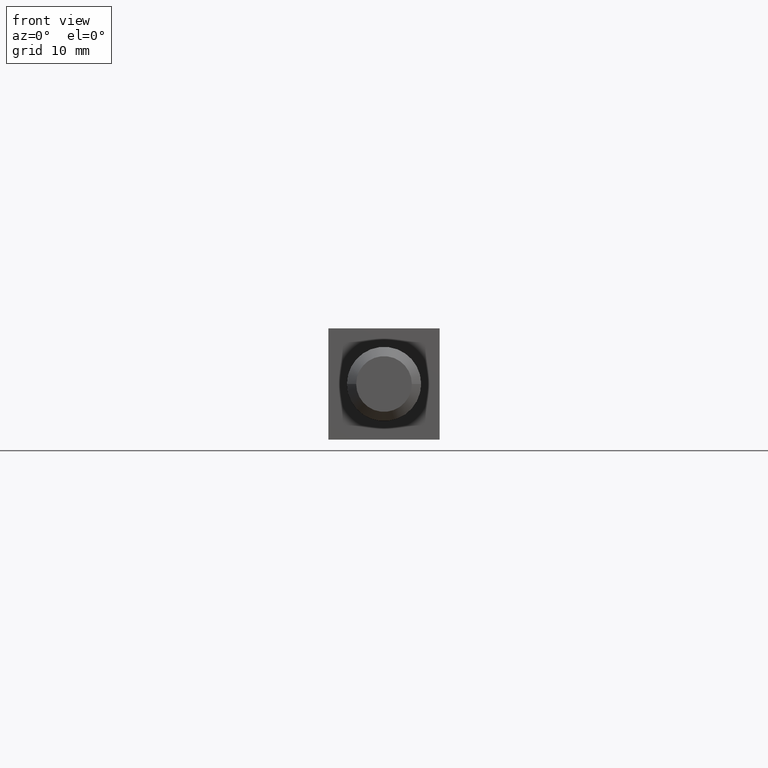
[diagram: clean part render]
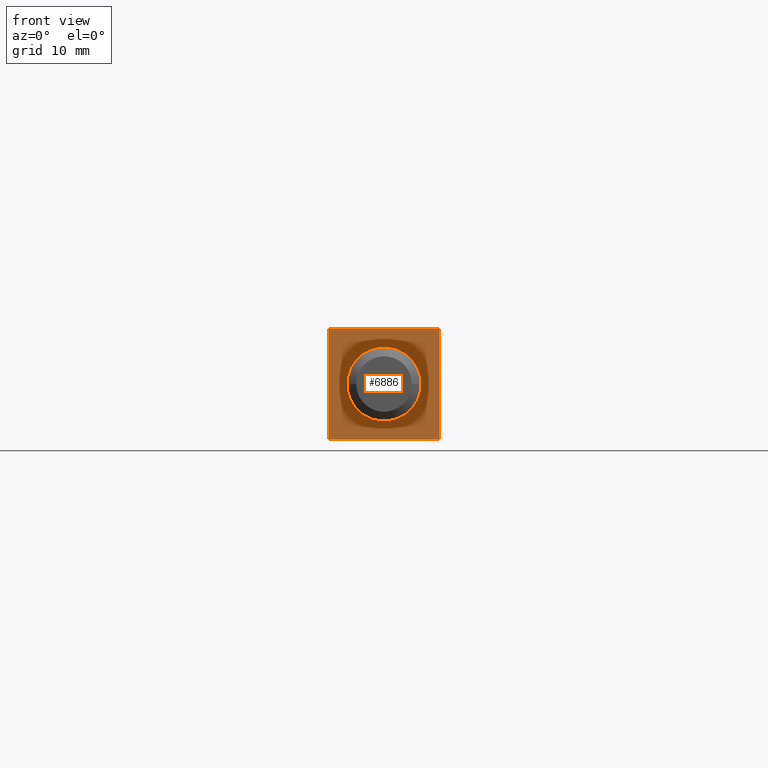
[diagram: same view with one face highlighted and labeled with its STEP entity id]
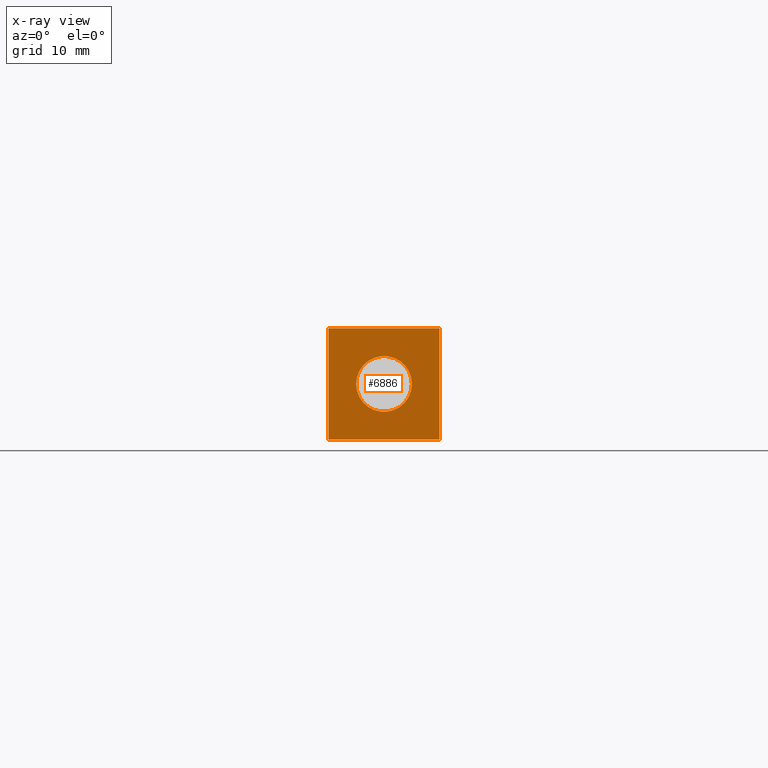
[diagram: x-ray of the same camera — body ghosted, the highlighted face saturated]
A machine part, front view. The second image highlights one B-rep face of the part: STEP entity #6886.
The next image is the same camera in x-ray: the body ghosted, the highlighted face saturated — about 0% of this face is hidden behind the body in this view.
In plain terms, the highlighted planar face has unit normal (-0, 1, 0).
Its self-contained STEP definition (entity closure, byte-faithful):
#18 = VERTEX_POINT ( 'NONE', #2774 ) ;
#280 = VERTEX_POINT ( 'NONE', #10686 ) ;
#384 = EDGE_CURVE ( 'NONE', #5508, #280, #404, .T. ) ;
#404 = LINE ( 'NONE', #7234, #4195 ) ;
#784 = VECTOR ( 'NONE', #7340, 1000.000000000000000 ) ;
#1205 = DIRECTION ( 'NONE',  ( -1.000000000000000000, -1.224646799147353200E-016, -0.0000000000000000000 ) ) ;
#1440 = CARTESIAN_POINT ( 'NONE',  ( -6.000000000000000900, -7.347880794884120700E-016, 5.999999999999999100 ) ) ;
#1458 = ORIENTED_EDGE ( 'NONE', *, *, #9680, .T. ) ;
#1584 = LINE ( 'NONE', #3324, #784 ) ;
#1621 = DIRECTION ( 'NONE',  ( -1.224646799147353000E-016, 1.000000000000000000, -0.0000000000000000000 ) ) ;
#1677 = CARTESIAN_POINT ( 'NONE',  ( 5.999999999999999100, 7.347880794884118800E-016, 5.999999999999999100 ) ) ;
#1823 = CARTESIAN_POINT ( 'NONE',  ( -6.000000000000000900, -7.347880794884120700E-016, 5.999999999999999100 ) ) ;
#2131 = AXIS2_PLACEMENT_3D ( 'NONE', #12581, #2453, #4638 ) ;
#2174 = EDGE_CURVE ( 'NONE', #6255, #12852, #3008, .T. ) ;
#2205 = VERTEX_POINT ( 'NONE', #7852 ) ;
#2453 = DIRECTION ( 'NONE',  ( -1.224646799147353000E-016, 1.000000000000000000, -0.0000000000000000000 ) ) ;
#2482 = EDGE_CURVE ( 'NONE', #12852, #5508, #1584, .T. ) ;
#2774 = CARTESIAN_POINT ( 'NONE',  ( -3.000214798500902900, -7.350326440822314800E-016, 0.0000000000000000000 ) ) ;
#3008 = LINE ( 'NONE', #1823, #3793 ) ;
#3324 = CARTESIAN_POINT ( 'NONE',  ( 5.999999999999997300, 7.347880794884116800E-016, -6.000000000000000900 ) ) ;
#3379 = DIRECTION ( 'NONE',  ( 1.445602896647339200E-016, 1.604941620322696500E-032, 1.000000000000000000 ) ) ;
#3638 = CIRCLE ( 'NONE', #2131, 3.000214798500902900 ) ;
#3793 = VECTOR ( 'NONE', #8880, 1000.000000000000000 ) ;
#4076 = CARTESIAN_POINT ( 'NONE',  ( 5.999999999999997300, 7.347880794884116800E-016, -6.000000000000000900 ) ) ;
#4195 = VECTOR ( 'NONE', #1205, 1000.000000000000000 ) ;
#4304 = VECTOR ( 'NONE', #3379, 1000.000000000000000 ) ;
#4638 = DIRECTION ( 'NONE',  ( -1.000000000000000000, -1.224646799147353000E-016, 0.0000000000000000000 ) ) ;
#5093 = LINE ( 'NONE', #5414, #4304 ) ;
#5414 = CARTESIAN_POINT ( 'NONE',  ( -6.000000000000002700, -7.347880794884122700E-016, -6.000000000000000900 ) ) ;
#5508 = VERTEX_POINT ( 'NONE', #4076 ) ;
#5556 = DIRECTION ( 'NONE',  ( -1.000000000000000000, -1.224646799147353200E-016, 0.0000000000000000000 ) ) ;
#6020 = EDGE_LOOP ( 'NONE', ( #11088, #12961, #7697, #11895 ) ) ;
#6255 = VERTEX_POINT ( 'NONE', #1440 ) ;
#6455 = DIRECTION ( 'NONE',  ( -1.000000000000000000, -1.224646799147353000E-016, 0.0000000000000000000 ) ) ;
#6610 = EDGE_CURVE ( 'NONE', #280, #6255, #5093, .T. ) ;
#6886 = ADVANCED_FACE ( 'NONE', ( #11837, #11222 ), #10585, .F. ) ;
#7234 = CARTESIAN_POINT ( 'NONE',  ( -6.000000000000002700, -7.347880794884122700E-016, -6.000000000000000900 ) ) ;
#7340 = DIRECTION ( 'NONE',  ( -1.445602896647339200E-016, -1.604941620322696500E-032, -1.000000000000000000 ) ) ;
#7527 = ORIENTED_EDGE ( 'NONE', *, *, #12549, .T. ) ;
#7691 = AXIS2_PLACEMENT_3D ( 'NONE', #10543, #1621, #6455 ) ;
#7697 = ORIENTED_EDGE ( 'NONE', *, *, #6610, .F. ) ;
#7779 = CIRCLE ( 'NONE', #7691, 3.000214798500902900 ) ;
#7852 = CARTESIAN_POINT ( 'NONE',  ( 3.000214798500902900, 0.0000000000000000000, 3.674203449738651900E-016 ) ) ;
#8880 = DIRECTION ( 'NONE',  ( 1.000000000000000000, 1.224646799147353200E-016, 0.0000000000000000000 ) ) ;
#9392 = AXIS2_PLACEMENT_3D ( 'NONE', #10624, #12686, #5556 ) ;
#9680 = EDGE_CURVE ( 'NONE', #2205, #18, #3638, .T. ) ;
#10410 = EDGE_LOOP ( 'NONE', ( #7527, #1458 ) ) ;
#10543 = CARTESIAN_POINT ( 'NONE',  ( 4.499601494138601500E-032, -3.674203449738651400E-016, 0.0000000000000000000 ) ) ;
#10585 = PLANE ( 'NONE',  #9392 ) ;
#10624 = CARTESIAN_POINT ( 'NONE',  ( -1.215422807667650900E-048, 9.924680393676573300E-033, 1.641654681943803200E-065 ) ) ;
#10686 = CARTESIAN_POINT ( 'NONE',  ( -6.000000000000002700, -7.347880794884122700E-016, -6.000000000000000900 ) ) ;
#11088 = ORIENTED_EDGE ( 'NONE', *, *, #2482, .F. ) ;
#11222 = FACE_OUTER_BOUND ( 'NONE', #6020, .T. ) ;
#11837 = FACE_BOUND ( 'NONE', #10410, .T. ) ;
#11895 = ORIENTED_EDGE ( 'NONE', *, *, #384, .F. ) ;
#12549 = EDGE_CURVE ( 'NONE', #18, #2205, #7779, .T. ) ;
#12581 = CARTESIAN_POINT ( 'NONE',  ( 4.499601494138601500E-032, -3.674203449738651400E-016, 0.0000000000000000000 ) ) ;
#12686 = DIRECTION ( 'NONE',  ( -1.224646799147353200E-016, 1.000000000000000000, 1.654113398946095800E-033 ) ) ;
#12852 = VERTEX_POINT ( 'NONE', #1677 ) ;
#12961 = ORIENTED_EDGE ( 'NONE', *, *, #2174, .F. ) ;